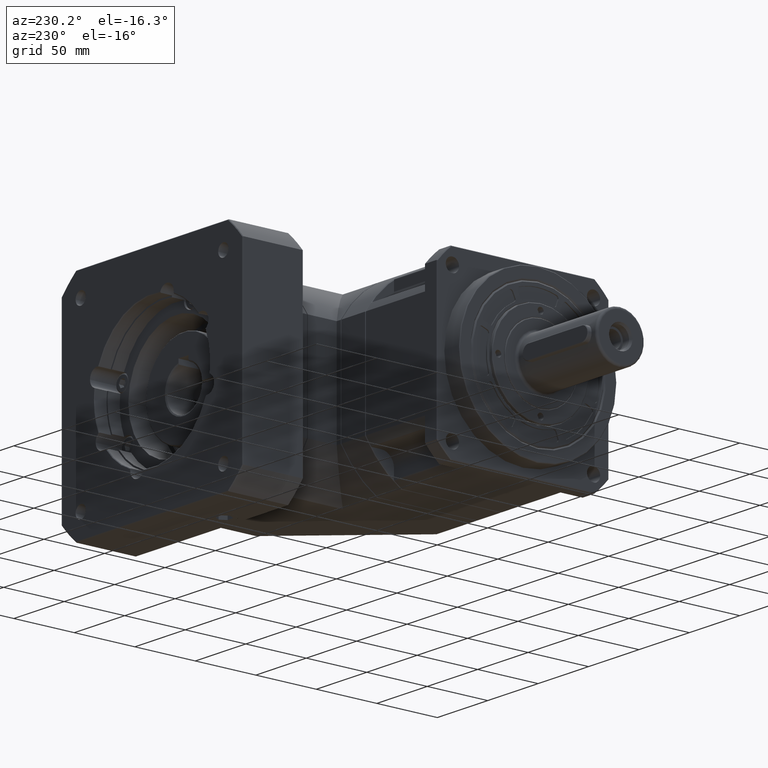
[diagram: clean part render]
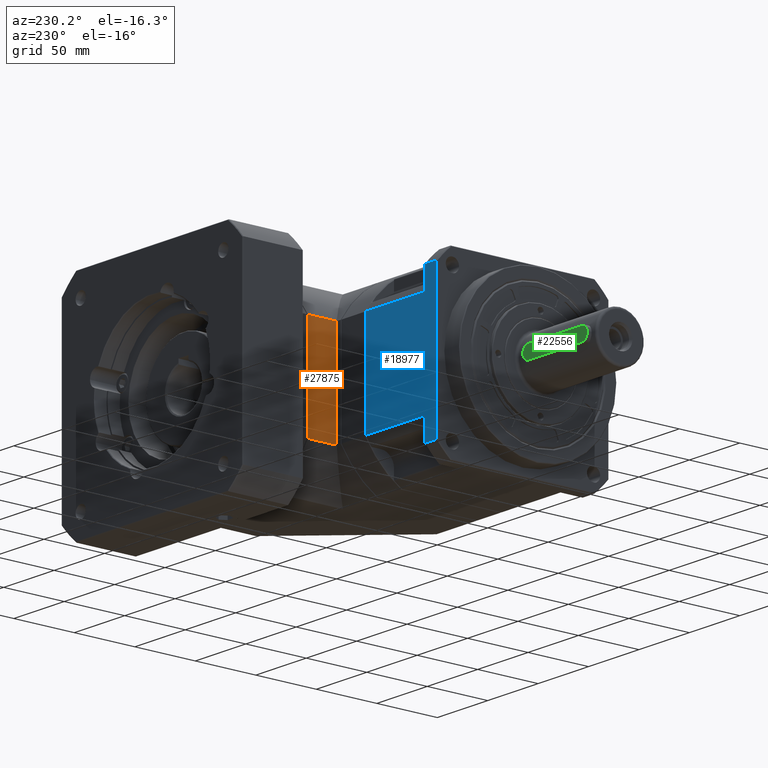
[diagram: same view with three faces highlighted in distinct colors, each labeled with its STEP entity id]
A machine part, auxiliary view with three faces highlighted in distinct colors.
Their STEP definitions:

[orange] entity #27875 — the highlighted planar face has unit normal (1, 0, 0).
#26726=DIRECTION('',(0.E0,-1.E0,0.E0));
#26727=VECTOR('',#26726,2.4E1);
#26728=CARTESIAN_POINT('',(7.1E1,9.5E1,-4.102438299353E1));
#26729=LINE('',#26728,#26727);
#26981=DIRECTION('',(0.E0,0.E0,-1.E0));
#26982=VECTOR('',#26981,8.204876598706E1);
#26983=CARTESIAN_POINT('',(7.1E1,9.5E1,4.102438299353E1));
#26984=LINE('',#26983,#26982);
#27014=DIRECTION('',(0.E0,0.E0,-1.E0));
#27015=VECTOR('',#27014,8.204876598706E1);
#27016=CARTESIAN_POINT('',(7.1E1,7.1E1,4.102438299353E1));
#27017=LINE('',#27016,#27015);
#27030=DIRECTION('',(0.E0,1.E0,0.E0));
#27031=VECTOR('',#27030,2.4E1);
#27032=CARTESIAN_POINT('',(7.1E1,7.1E1,4.102438299353E1));
#27033=LINE('',#27032,#27031);
#27417=CARTESIAN_POINT('',(7.1E1,9.5E1,-4.102438299353E1));
#27419=VERTEX_POINT('',#27417);
#27437=CARTESIAN_POINT('',(7.1E1,7.1E1,-4.102438299353E1));
#27439=VERTEX_POINT('',#27437);
#27453=CARTESIAN_POINT('',(7.1E1,7.1E1,4.102438299353E1));
#27455=VERTEX_POINT('',#27453);
#27488=CARTESIAN_POINT('',(7.1E1,9.5E1,4.102438299353E1));
#27489=VERTEX_POINT('',#27488);
#27863=CARTESIAN_POINT('',(7.1E1,-2.008183258570E2,-4.102438299353E1));
#27864=DIRECTION('',(-1.E0,0.E0,0.E0));
#27865=DIRECTION('',(0.E0,0.E0,1.E0));
#27866=AXIS2_PLACEMENT_3D('',#27863,#27864,#27865);
#27867=PLANE('',#27866);
#27868=ORIENTED_EDGE('',*,*,#27559,.F.);
#27870=ORIENTED_EDGE('',*,*,#27869,.T.);
#27871=ORIENTED_EDGE('',*,*,#27831,.T.);
#27872=ORIENTED_EDGE('',*,*,#27528,.T.);
#27873=EDGE_LOOP('',(#27868,#27870,#27871,#27872));
#27874=FACE_OUTER_BOUND('',#27873,.F.);
#27875=ADVANCED_FACE('',(#27874),#27867,.F.);
#27528=EDGE_CURVE('',#27419,#27439,#26729,.T.);
#27559=EDGE_CURVE('',#27455,#27439,#27017,.T.);
#27831=EDGE_CURVE('',#27489,#27419,#26984,.T.);
#27869=EDGE_CURVE('',#27455,#27489,#27033,.T.);

[blue] entity #18977 — the highlighted planar face has unit normal (0, 1, 0).
#15119=DIRECTION('',(0.E0,0.E0,-1.E0));
#15120=VECTOR('',#15119,1.185790875323E2);
#15121=CARTESIAN_POINT('',(1.55E1,7.1E1,5.928954376617E1));
#15122=LINE('',#15121,#15120);
#15185=DIRECTION('',(-1.E0,0.E0,0.E0));
#15186=VECTOR('',#15185,1.15E1);
#15187=CARTESIAN_POINT('',(2.7E1,7.1E1,5.928954376617E1));
#15188=LINE('',#15187,#15186);
#15197=DIRECTION('',(1.E0,0.E0,0.E0));
#15198=VECTOR('',#15197,1.15E1);
#15199=CARTESIAN_POINT('',(1.55E1,7.1E1,-5.928954376617E1));
#15200=LINE('',#15199,#15198);
#15576=CARTESIAN_POINT('',(8.55E1,7.1E1,4.102438299353E1));
#15591=DIRECTION('',(0.E0,0.E0,1.E0));
#15592=VECTOR('',#15591,8.204876598706E1);
#15593=CARTESIAN_POINT('',(8.55E1,7.1E1,-4.102438299353E1));
#15594=LINE('',#15593,#15592);
#15673=DIRECTION('',(1.E0,0.E0,0.E0));
#15674=VECTOR('',#15673,5.85E1);
#15675=CARTESIAN_POINT('',(2.7E1,7.1E1,-4.102438299353E1));
#15676=LINE('',#15675,#15674);
#15692=DIRECTION('',(0.E0,0.E0,1.E0));
#15693=VECTOR('',#15692,1.826516077263E1);
#15694=CARTESIAN_POINT('',(2.7E1,7.1E1,-5.928954376617E1));
#15695=LINE('',#15694,#15693);
#15747=DIRECTION('',(-1.E0,0.E0,0.E0));
#15748=VECTOR('',#15747,5.85E1);
#15749=CARTESIAN_POINT('',(8.55E1,7.1E1,4.102438299353E1));
#15750=LINE('',#15749,#15748);
#15811=DIRECTION('',(0.E0,0.E0,1.E0));
#15812=VECTOR('',#15811,1.826516077263E1);
#15813=CARTESIAN_POINT('',(2.7E1,7.1E1,4.102438299353E1));
#15814=LINE('',#15813,#15812);
#17731=CARTESIAN_POINT('',(1.55E1,7.1E1,-5.928954376617E1));
#17732=VERTEX_POINT('',#17731);
#17806=VERTEX_POINT('',#15576);
#17807=CARTESIAN_POINT('',(8.55E1,7.1E1,-4.102438299353E1));
#17808=VERTEX_POINT('',#17807);
#17972=CARTESIAN_POINT('',(1.55E1,7.1E1,5.928954376617E1));
#17973=VERTEX_POINT('',#17972);
#18098=CARTESIAN_POINT('',(2.7E1,7.1E1,5.928954376617E1));
#18100=VERTEX_POINT('',#18098);
#18376=CARTESIAN_POINT('',(2.7E1,7.1E1,4.102438299353E1));
#18377=VERTEX_POINT('',#18376);
#18380=CARTESIAN_POINT('',(2.7E1,7.1E1,-4.102438299353E1));
#18381=VERTEX_POINT('',#18380);
#18382=CARTESIAN_POINT('',(2.7E1,7.1E1,-5.928954376617E1));
#18383=VERTEX_POINT('',#18382);
#18956=CARTESIAN_POINT('',(-8.2E1,7.1E1,7.1E1));
#18957=DIRECTION('',(0.E0,1.E0,0.E0));
#18958=DIRECTION('',(0.E0,0.E0,1.E0));
#18959=AXIS2_PLACEMENT_3D('',#18956,#18957,#18958);
#18960=PLANE('',#18959);
#18962=ORIENTED_EDGE('',*,*,#18961,.T.);
#18964=ORIENTED_EDGE('',*,*,#18963,.T.);
#18966=ORIENTED_EDGE('',*,*,#18965,.T.);
#18968=ORIENTED_EDGE('',*,*,#18967,.T.);
#18970=ORIENTED_EDGE('',*,*,#18969,.T.);
#18972=ORIENTED_EDGE('',*,*,#18971,.T.);
#18973=ORIENTED_EDGE('',*,*,#18947,.T.);
#18974=ORIENTED_EDGE('',*,*,#18822,.T.);
#18975=EDGE_LOOP('',(#18962,#18964,#18966,#18968,#18970,#18972,#18973,#18974));
#18976=FACE_OUTER_BOUND('',#18975,.F.);
#18977=ADVANCED_FACE('',(#18976),#18960,.T.);
#18822=EDGE_CURVE('',#17973,#17732,#15122,.T.);
#18947=EDGE_CURVE('',#18100,#17973,#15188,.T.);
#18961=EDGE_CURVE('',#17732,#18383,#15200,.T.);
#18963=EDGE_CURVE('',#18383,#18381,#15695,.T.);
#18965=EDGE_CURVE('',#18381,#17808,#15676,.T.);
#18967=EDGE_CURVE('',#17808,#17806,#15594,.T.);
#18969=EDGE_CURVE('',#17806,#18377,#15750,.T.);
#18971=EDGE_CURVE('',#18377,#18100,#15814,.T.);

[green] entity #22556 — the highlighted planar face has unit normal (0, 1, 0).
#17547=DIRECTION('',(1.E0,0.E0,0.E0));
#17548=VECTOR('',#17547,5.3E1);
#17549=CARTESIAN_POINT('',(-7.1E1,2.3E1,-5.5E0));
#17550=LINE('',#17549,#17548);
#17568=DIRECTION('',(-1.E0,0.E0,0.E0));
#17569=VECTOR('',#17568,5.3E1);
#17570=CARTESIAN_POINT('',(-1.8E1,2.3E1,5.5E0));
#17571=LINE('',#17570,#17569);
#17589=CARTESIAN_POINT('',(-7.1E1,2.3E1,0.E0));
#17590=DIRECTION('',(0.E0,1.E0,0.E0));
#17591=DIRECTION('',(1.550275059840E-14,0.E0,-1.E0));
#17592=AXIS2_PLACEMENT_3D('',#17589,#17590,#17591);
#17594=CARTESIAN_POINT('',(-1.8E1,2.3E1,0.E0));
#17595=DIRECTION('',(0.E0,1.E0,0.E0));
#17596=DIRECTION('',(0.E0,0.E0,1.E0));
#17597=AXIS2_PLACEMENT_3D('',#17594,#17595,#17596);
#18138=CARTESIAN_POINT('',(-7.1E1,2.3E1,-5.5E0));
#18139=CARTESIAN_POINT('',(-1.8E1,2.3E1,-5.5E0));
#18140=VERTEX_POINT('',#18138);
#18141=VERTEX_POINT('',#18139);
#18255=CARTESIAN_POINT('',(-1.8E1,2.3E1,5.5E0));
#18256=CARTESIAN_POINT('',(-7.1E1,2.3E1,5.5E0));
#18257=VERTEX_POINT('',#18255);
#18258=VERTEX_POINT('',#18256);
#22545=CARTESIAN_POINT('',(-1.8E1,2.3E1,0.E0));
#22546=DIRECTION('',(0.E0,1.E0,0.E0));
#22547=DIRECTION('',(0.E0,0.E0,1.E0));
#22548=AXIS2_PLACEMENT_3D('',#22545,#22546,#22547);
#22549=PLANE('',#22548);
#22550=ORIENTED_EDGE('',*,*,#22538,.F.);
#22551=ORIENTED_EDGE('',*,*,#22496,.T.);
#22552=ORIENTED_EDGE('',*,*,#22513,.F.);
#22553=ORIENTED_EDGE('',*,*,#22525,.T.);
#22554=EDGE_LOOP('',(#22550,#22551,#22552,#22553));
#22555=FACE_OUTER_BOUND('',#22554,.F.);
#22556=ADVANCED_FACE('',(#22555),#22549,.T.);
#17593=CIRCLE('',#17592,5.5E0);
#17598=CIRCLE('',#17597,5.5E0);
#22496=EDGE_CURVE('',#18140,#18141,#17550,.T.);
#22513=EDGE_CURVE('',#18257,#18141,#17598,.T.);
#22525=EDGE_CURVE('',#18257,#18258,#17571,.T.);
#22538=EDGE_CURVE('',#18140,#18258,#17593,.T.);